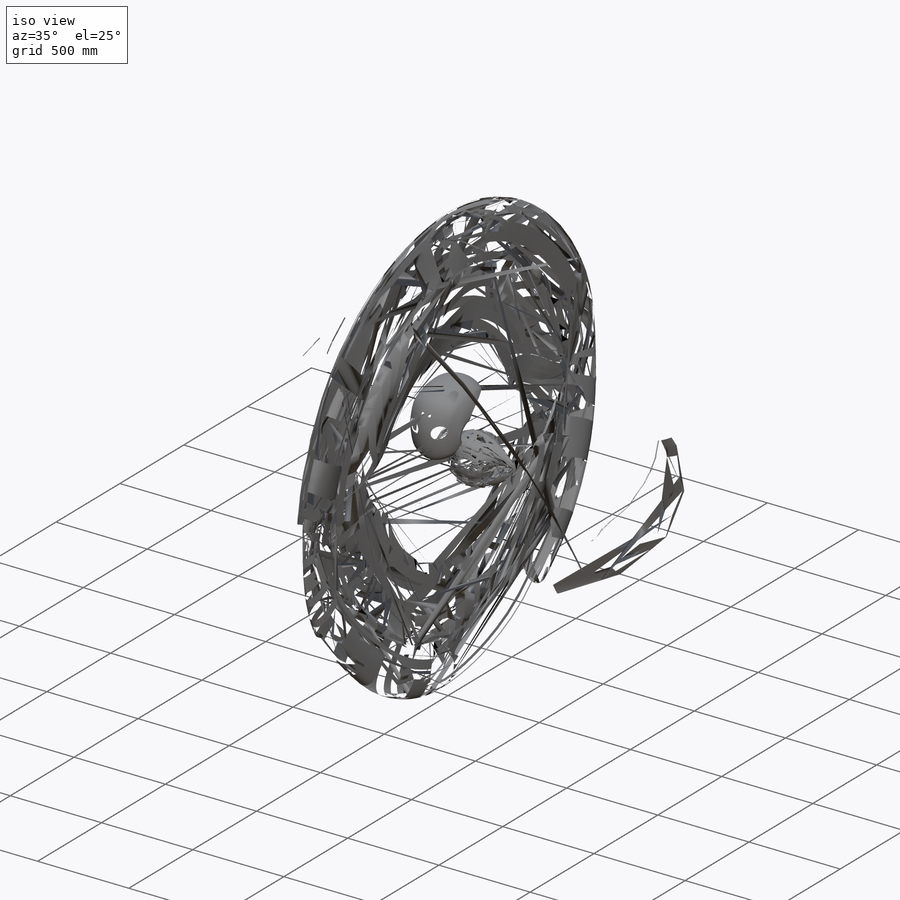
[diagram: iso view]
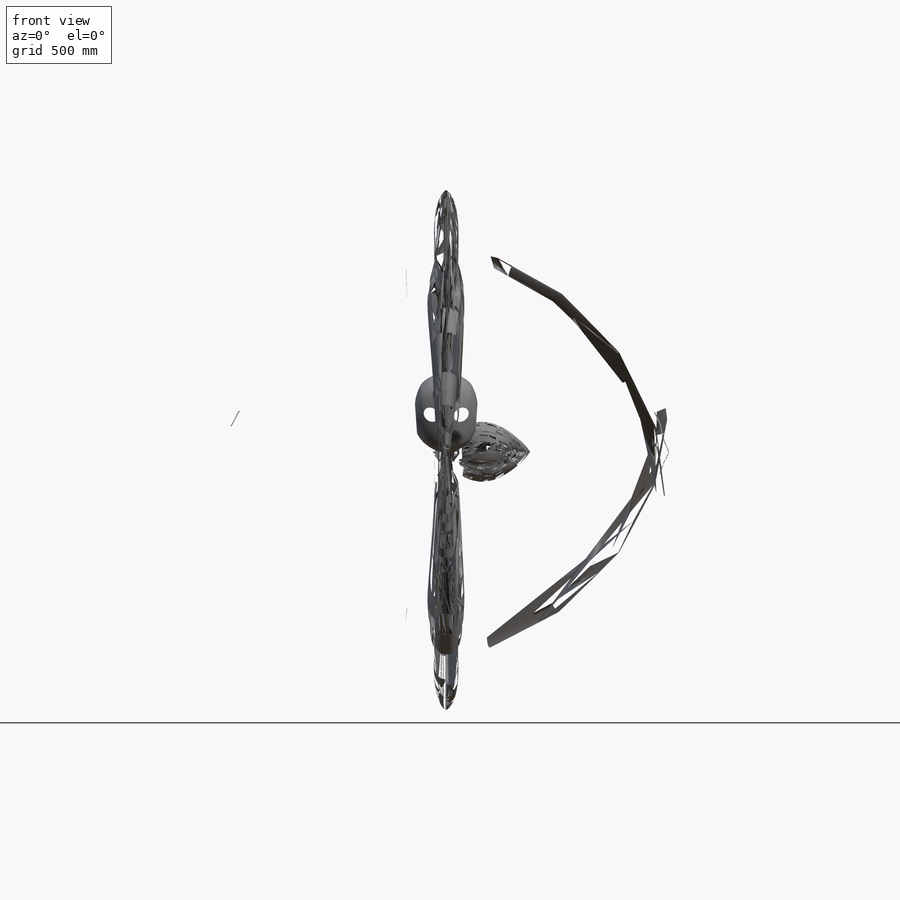
[diagram: front view]
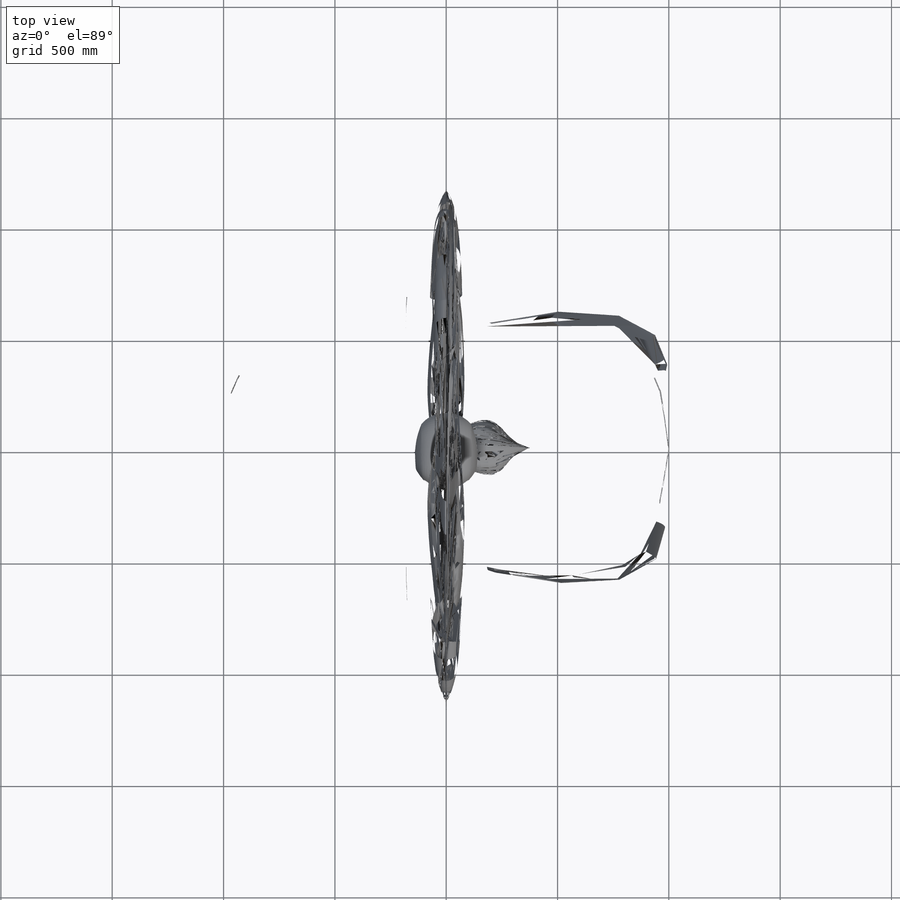
[diagram: top view]
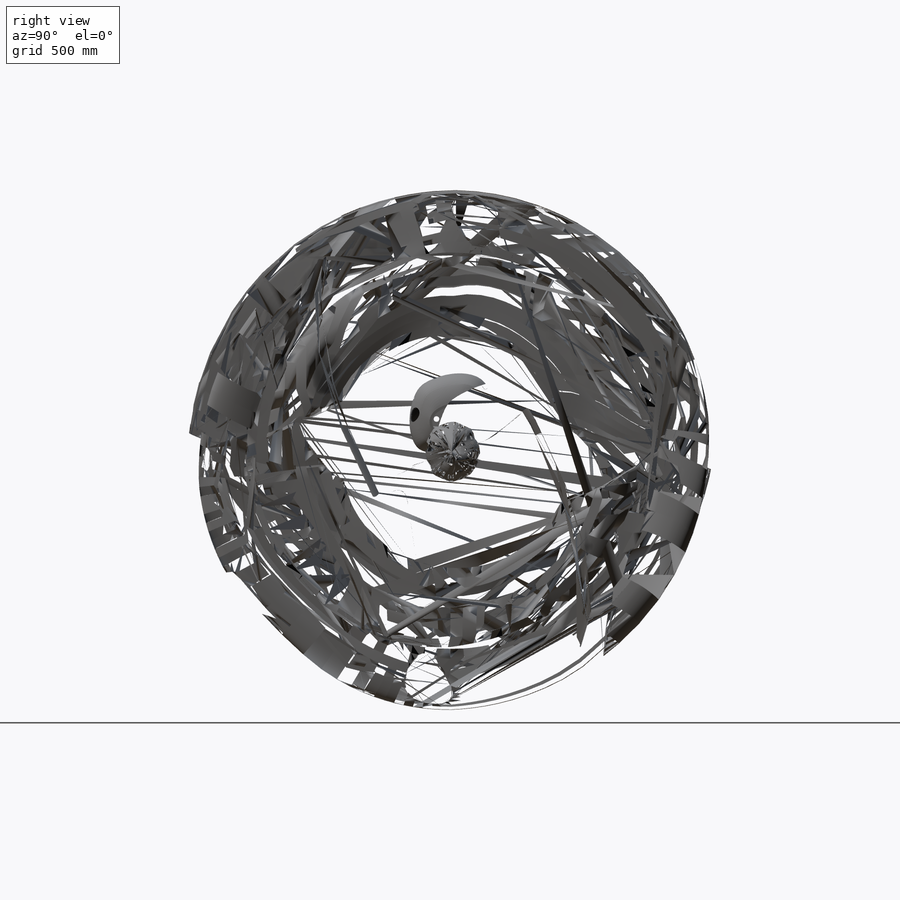
[diagram: right view]
SOLIDWORKS PART (.sldprt)
format: sldprt  version: not decoded by parser v0  size: 74,169,856 bytes
history: native  units: mm
features: sketch x65, fillet x30, plane x27, delete_body x10, surface_op x8, extrude x5, mirror x3, move_body x2, shell x2, material x1, boolean_combine x1 + 34 further entries (+35 scaffold rows collapsed; 14 parser-record rows omitted)
feature tree (237):
  scaffold x35  (default folders/planes/origin — collapsed)
  material  "ABS"
  plane  "Ebene vorne"
  parser-record x14  (decoder bookkeeping rows leaked as tree rows — omitted from the tree; the rows remain in map.json)
  sketch  "bildvorlage_gesicht verbreitert"  dims[c1.D1=~2077.482644mm c2.D1=350.0mm c2.D2=200.0mm c2.D3=175.0mm c3.D2=140.0mm c3.D3=140.0mm c4.D2=~290.354091mm]
  plane  "Ebene4"  Offset=200mm
  plane  "Ebene11"
  plane  "Ebene12"
  plane  "Ebene13"
  plane  "Ebene14"  Offset=12mm
  plane  "Ebene15"  Offset=60mm
  plane  "Ebene17"
  plane  "Ebene18"
  sketch  "Skizze60"
  sketch  "Skizze61"
  sketch  "Skizze62"
  sketch  "Skizze63"
  sketch  "Skizze65"
  sketch  "Skizze66"
  sketch  "Skizze67"
  sketch  "Skizze68"
  sketch  "Skizze70"
  mirror  "Spiegeln1"
  surface_op  "Oberfläche-Ebene2"
  sketch  "3D-Skizze2"
  sketch  "Skizze74"  dims[D1=270.0mm D2=280.0mm D3=60.0mm D4=60.0mm D5=100.0mm D6=100.0mm]
  sketch  "Skizze75"  dims[c1.D1=280.0mm c1.D2=130.0mm c1.D3=130.0mm c2.D1=330.0mm c2.D4=180.0mm c2.D5=120.0mm c2.D6=120.0mm c3.D1=191.0mm c3.D2=68.0mm c3.D3=34.0mm c3.D4=222.0mm c4.D1=~0.836151mm c4.D3=~215.004935mm]
  sketch  "Skizze76"
  "3D-Skizze6"
  sketch  "Skizze79"
  sketch  "Skizze77"  dims[c1.D1=113.0mm c1.D2=50.0mm c2.D2=35.0mm c2.D3=75.0mm c3.D3=~84.822592mm]
  sketch  "Skizze78"
  "Ausformung4"
  "3D-Skizze7"
  sketch  "Skizze85"
  sketch  "Skizze86"  dims[D1=160.0mm D2=120.0mm]
  "3D-Skizze9"
  "3D-Skizze10"
  "3D-Skizze11"
  "3D-Skizze12"
  "3D-Skizze13"
  surface_op  "Oberfläche-Ausformung3"
  move_body  "Körper-Verschieben/Kopieren5"
  move_body  "Körper-Verschieben/Kopieren6"
  plane  "Ebene19"  Offset=200mm
  sketch  "Skizze89"  dims[D1=12.0mm]
  sketch  "Skizze90"  dims[D1=10.0mm]
  sketch  "Skizze91"  dims[D1=10.0mm]
  "3D-Skizze16"
  "3D-Skizze17"
  "3D-Skizze18"
  surface_op  "Oberfläche-Ausformung5"
  "3D-Skizze19"
  "3D-Skizze20"
  "3D-Skizze21"
  surface_op  "Oberfläche-Ausformung6"
  plane  "Wanddicke auftragen5"  Offset=1mm
  plane  "Wanddicke auftragen6"  Offset=1mm
  "3D-Skizze22"
  extrude  "Aufsatz-Linear austragen4"  [1 undecoded]
  boolean_combine  "Kombinieren13"
  plane  "Ebene20"  Offset=200mm
  "Skizzenbild10"  Trennlinie4=0deg
  "3D-Skizze27"
  "3D-Skizze28"
  sketch  "Schnitt-Linear austragen1"  dims[D1=2.0mm]
  sketch  "Schnitt-Linear austragen2"  dims[D1=1.0mm]
  "3D-Skizze30"
  "3D-Skizze31"
  mirror  "Oberflächenausfüllung2"
  "Abspalten8"  Kombinieren14=0mm Kombinieren15=0mm
  "Abspalten10"
  shell  "Wandung8"  Thickness=4mm
  extrude  "Oberfläche-Verlängern2"  Depth=25mm
  "Abspalten13"
  "Abspalten11"
  sketch  "Aufsatz-Linear austragen5"  dims[D1=10.0mm D3=~174.532925mm]
  sketch  "Aufsatz-Linear austragen6"  dims[D1=10.0mm D3=~174.532925mm Kombinieren25=0.0mm]
  plane  "Ebene23"  Offset=200mm
  sketch  "Oberfläche-Offset1"  dims[D1=0.0mm]
  surface_op  "Oberfläche-Zusammenfügen2"
  "3D-Skizze32"
  "3D-Skizze33"
  surface_op  "Oberfläche-Ausformung7"
  surface_op  "Oberfläche-Zusammenfügen3"
  plane  "Wanddicke auftragen7"  Offset=3mm
  "3D-Skizze34"
  sketch  "Aufsatz-Linear austragen7"  dims[D1=10.0mm]
  delete_body  "Körper-Löschen1"
  shell  "Körper-Löschen2"  [1 undecoded]
  "3D-Skizze35"
  "3D-Skizze38"
  plane  "Ebene24"  Offset=170mm
  plane  "Ebene25"  Offset=180mm
  sketch  "Skizze94"  dims[c1.D2=~11.634535mm c1.D1=3.0mm c2.D2=6.0mm c2.D4=3.0]
  sketch  "Ohrenvariante _Schlitze"  dims[D1=6.0mm]
  delete_body  "Block2-14"
  delete_body  "Block2-15"
  delete_body  "Block2-16"
  delete_body  "Block2-17"
  delete_body  "Block4-12"
  delete_body  "Block4-13"
  delete_body  "Block4-14"
  delete_body  "Block4-15"
  delete_body  "Block4-16"
  sketch  "Ohrenvariante_Lochung"
  fillet  "Verrundung10"  Radius=1mm
  sketch  "Oberfläche-Offset8"  dims[D1=0.0mm]
  surface_op  "Oberfläche-Trimmen aufheben4"
  extrude  "Oberfläche-Verlängern4"  Depth=5mm
  plane  "Wanddicke auftragen11"  Offset=4mm
  "Abspalten14"
  sketch  "Oberfläche-Offset9"  dims[D1=0.0mm]
  plane  "Wanddicke auftragen12"  Offset=4mm
  "Abspalten15"
  plane  "Ebene26"  Offset=200mm
  sketch  "Skizze93"  dims[D1=14.5mm D2=14.5mm D3=36.0mm D4=18.0mm D5=240.0mm]
  sketch  "kameras"  dims[D1=60.0mm]
  fillet  "Verrundung11"  Radius=20mm
  sketch  "Skizze96"
  sketch  "Schnitt-Linear austragen3"  dims[D1=0.3mm]
  fillet  "Verrundung12"  Radius=0.5mm
  mirror  "Spiegeln20"
  sketch  "Skizze97"  dims[D1=8.1mm D2=15.0mm D3=~70.904055mm]
  sketch  "Aufsatz-Linear austragen8"  dims[D1=20.0mm]
  fillet  "Verrundung13"  Radius=5mm
  sketch  "Skizze98"
  sketch  "Aufsatz-Linear austragen9"  dims[D1=5.0mm]
  fillet  "Verrundung15"  Radius=0.5mm
  fillet  "Verrundung45"  Radius=1mm
  sketch  "Skizze99"  dims[D1=8.1mm D2=15.0mm]
  sketch  "Aufsatz-Linear austragen10"  dims[D1=20.0mm]
  fillet  "Verrundung16"  Radius=5mm
  sketch  "Skizze100"
  sketch  "Aufsatz-Linear austragen11"  dims[D1=5.0mm]
  fillet  "Verrundung17"  Radius=0.5mm
  fillet  "Verrundung46"  Radius=1mm
  plane  "Ebene29"  Offset=328mm
  plane  "Ebene28"  Offset=27.6mm
  sketch  "Skizze110"
  sketch  "Skizze111"  dims[D1=15.0mm D2=8.1mm D3=15.0mm D4=8.1mm D5=50.0mm D6=50.0mm]
  sketch  "Aufsatz-Linear austragen12"
  fillet  "Verrundung18"  Radius=5mm
  plane  "Ebene32"  Offset=14mm
  sketch  "Skizze124"
  sketch  "Aufsatz-Linear austragen14"
  fillet  "Verrundung50"  Radius=1mm
  fillet  "Verrundung51"  Radius=0.5mm
  plane  "Ebene30"  Offset=100mm
  sketch  "Skizze116"  dims[c1.D4=~176.00848mm c1.D5=~3063.341753mm c1.D3=350.0mm c1.D1=45.0mm c1.D2=45.0mm c2.D3=15.0mm c2.D4=20.0mm c2.D5=20.0mm c3.D4=2.0mm c3.D5=2.0mm c3.D6=91.0mm c3.D7=45.5mm]
  sketch  "Oberfläche-Offset11"  dims[D1=5.0mm]
  extrude  "Oberfläche-Verlängern5"  Depth=20mm
  sketch  "Oberfläche-Offset14"  dims[D1=0.0mm]
  extrude  "Oberfläche-Verlängern6"  Depth=23mm
  "Ausformung26"
  plane  "Ebene31"  Offset=138mm
  sketch  "Skizze122"  dims[D1=12.3mm D2=294.0mm]
  sketch  "Schnitt-Linear austragen4"  dims[D1=60.0mm]
  fillet  "Verrundung29"  Radius=2.3mm
  sketch  "Skizze123"  dims[c1.D2=18.0mm c1.D3=12.3mm c1.D1=294.0mm c2.D2=16.0mm c2.D4=30.0mm]
  sketch  "Aufsatz-Linear austragen13"
  fillet  "Verrundung31"  Radius=2mm
  fillet  "Verrundung32"  Radius=10mm
  fillet  "Verrundung33"  Radius=5mm
  fillet  "Verrundung34"  Radius=1.5mm
  fillet  "Verrundung35"  Radius=1.5mm
  fillet  "Verrundung40"  Radius=1mm
  fillet  "Verrundung42"  Radius=0.5mm
  fillet  "Verrundung44"  Radius=0.5mm
  fillet  "Verrundung47"  Radius=0.2mm
  fillet  "Verrundung58"  Radius=0.3mm
  plane  "Ebene33"  Offset=120mm
  plane  "Ebene34"  Offset=225mm
  sketch  "Skizze125"  dims[D1=6.0mm D2=60.0mm D3=30.0mm]
  sketch  "Aufsatz-Linear austragen15"
  fillet  "Verrundung59"  Radius=8mm
  fillet  "Verrundung60"  Radius=10mm
  fillet  "Verrundung61"  Radius=2mm
  sketch  "Skizze126"  dims[c1.D1=5.5mm c1.D2=5.5mm c1.D3=15.0mm c1.D4=15.0mm c1.D5=15.0mm c1.D6=~58.530865mm c1.D7=15.0mm c2.D6=10.0mm]
  sketch  "Schnitt-Linear austragen6"  dims[D1=15.0mm]
  fillet  "Verrundung62"  Radius=0.5mm
  sketch  "Skizze127"  dims[D1=35.0mm D2=20.0mm D3=50.0mm]
  sketch  "Schnitt-Linear austragen7"  dims[D1=15.0mm]
  fillet  "Verrundung63"  Radius=2mm
  "3D-Skizze39"
  sketch  "Schnitt-Linear austragen12"  dims[D1=2.0mm]
  "3D-Skizze40"
  sketch  "Schnitt-Linear austragen13"  dims[D1=2.0mm]
  fillet  "Verrundung64"  Radius=0.1mm
  fillet  "Verrundung66"  Radius=1mm
decode coverage: 76 of 126 modeling features carry decoded parameters; 34 rows unclassified (native names shown)
note: ~ marks probable driven/reference dimensions
note: 2 parameter values undecoded
summary: [note 2] (x57 features) parser:v0:name_prior (class ref resolved by constrained assignment + name prior)
note: suppression state not decoded; provenance and decode notes live in map.json
